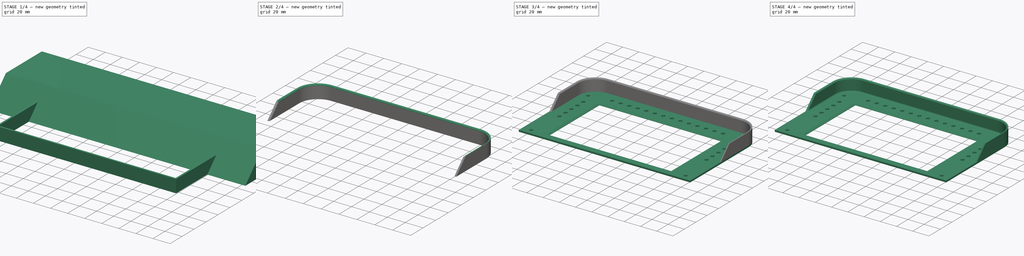
[diagram: build sequence overview — one tinted view per stage of 4, left to right]
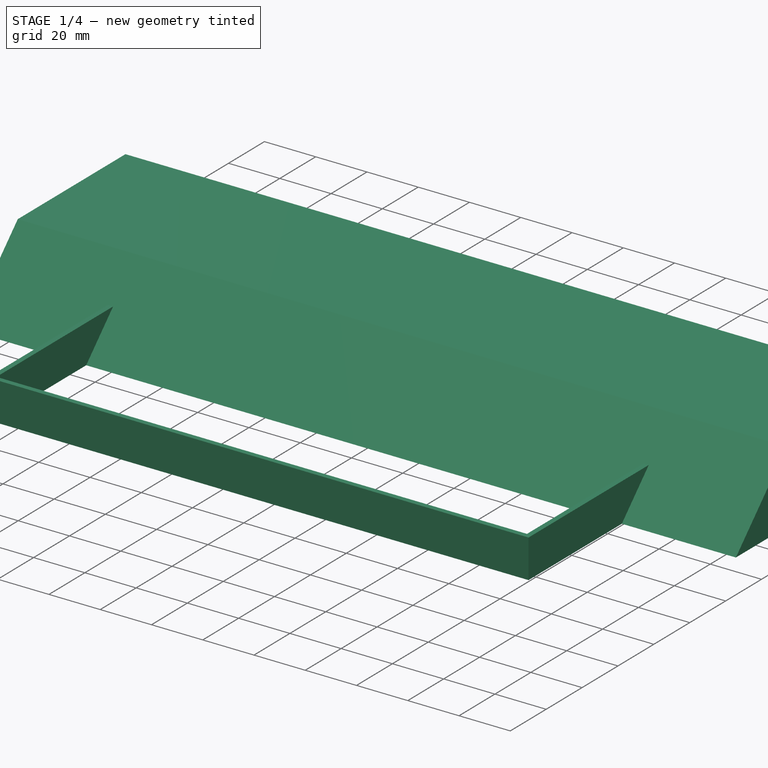
[diagram: stage 1 of 4 — iso view after this stage's code; geometry added in this stage tinted green]
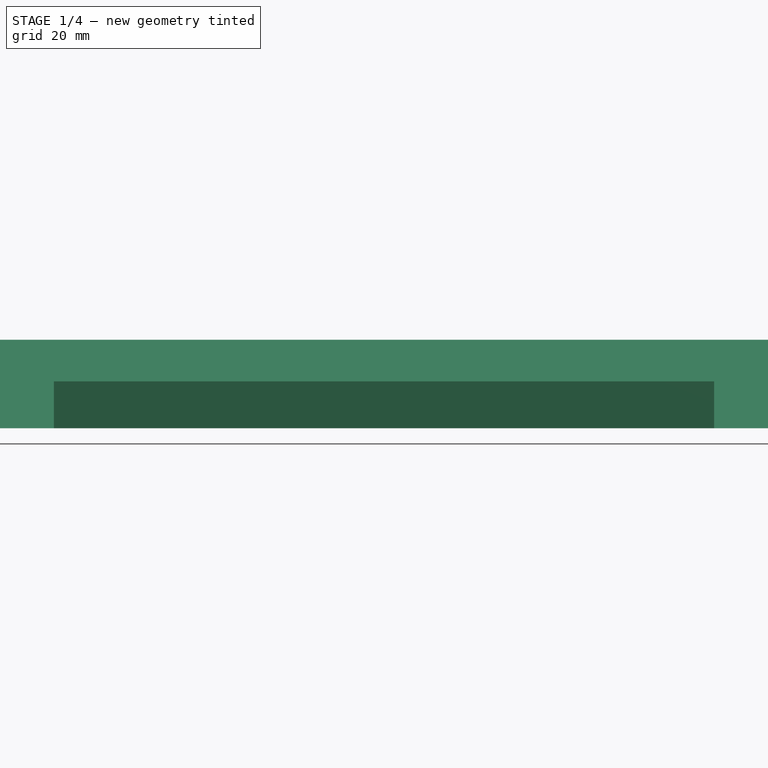
[diagram: stage 1 of 4 — front view after this stage's code; geometry added in this stage tinted green]
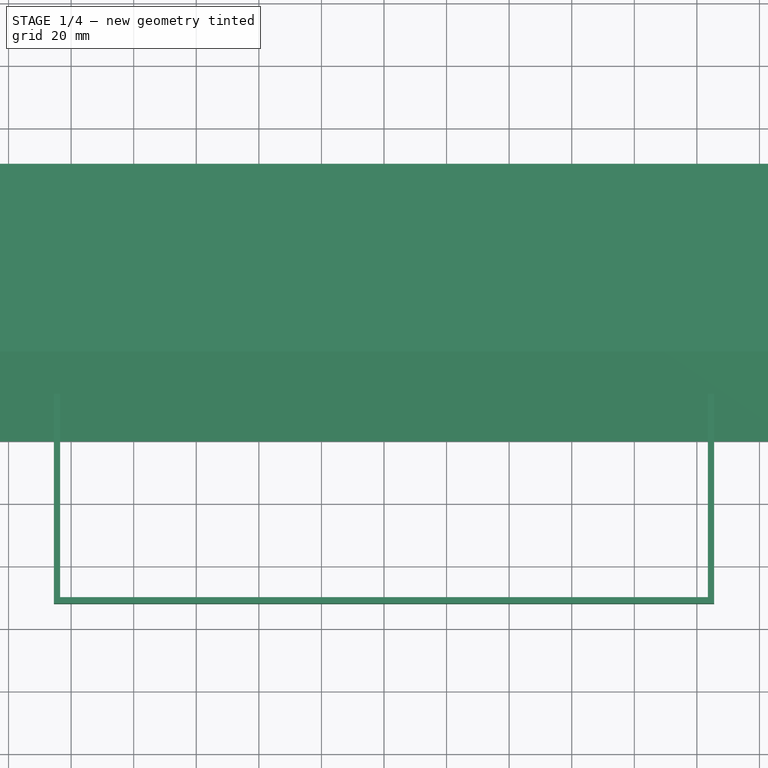
[diagram: stage 1 of 4 — top view after this stage's code; geometry added in this stage tinted green]
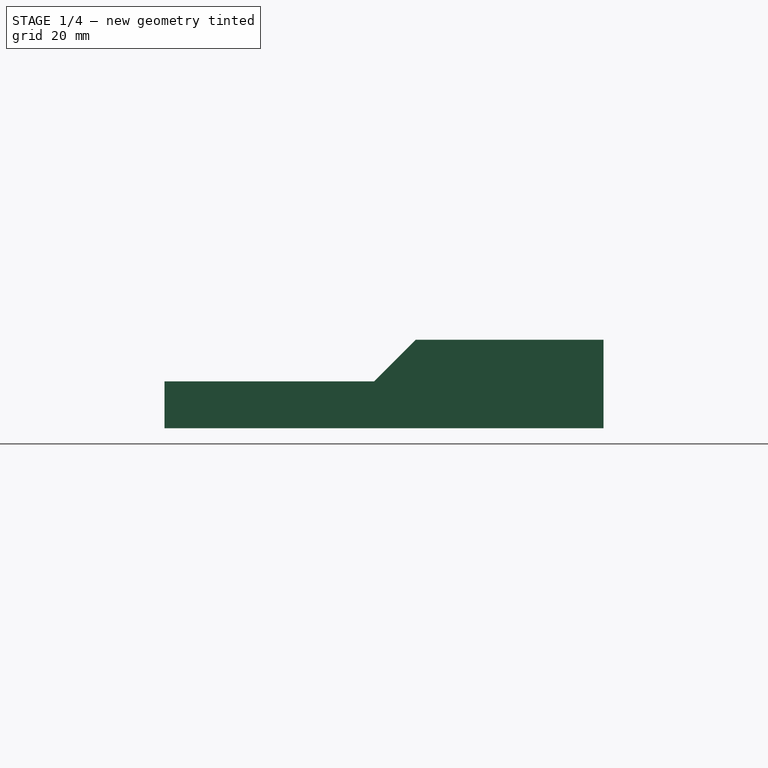
[diagram: stage 1 of 4 — right view after this stage's code; geometry added in this stage tinted green]
FCSTD DOCUMENT  (FreeCAD 0.21R33771 (Git))
Label: 6IN8SHELL-FRONT
License: All rights reserved
LicenseURL: http://en.wikipedia.org/wiki/All_rights_reserved
objects: Sketcher::SketchObject×4, PartDesign::Fillet×4, PartDesign::Pad×3, PartDesign::Body×3, PartDesign::Boolean×2, PartDesign::Chamfer×1
note: 25 computed .brp shape members not serialized (recipe doc carries the construction recipe); baked Part::Feature solids carry a one-line shape summary decoded from their .brp

FEATURE [PartDesign::Body] Body  label="FRONT"
  Group = -> [Sketch002,Pad,Chamfer]
  Origin = -> Origin
  Tip = -> Chamfer
FEATURE [Sketcher::SketchObject] Sketch003
  FullyConstrained = true
  MapMode = 5
  Support = -> [XY_Plane001]
  sketch-geometry (12):
    g0: LineSegment StartX=-105.5 StartY=-52 StartZ=0 EndX=105.5 EndY=-52 EndZ=0
    g1: LineSegment StartX=105.5 StartY=-52 StartZ=0 EndX=105.5 EndY=50 EndZ=0
    g2: LineSegment StartX=-105.5 StartY=-52 StartZ=0 EndX=-105.5 EndY=50 EndZ=0
    g3: LineSegment StartX=-82.5 StartY=73 StartZ=0 EndX=82.5 EndY=73 EndZ=0
    g4: ArcOfCircle CenterX=-82.5 CenterY=50 CenterZ=0 NormalX=0 NormalY=0 NormalZ=1 AngleXU=0 Radius=23 StartAngle=1.5708 EndAngle=3.14159
    g5: ArcOfCircle CenterX=82.5 CenterY=50 CenterZ=0 NormalX=0 NormalY=0 NormalZ=1 AngleXU=0 Radius=23 StartAngle=0 EndAngle=1.5708
    g6: LineSegment StartX=-103.5 StartY=-50 StartZ=0 EndX=103.5 EndY=-50 EndZ=0
    g7: LineSegment StartX=103.5 StartY=-50 StartZ=0 EndX=103.5 EndY=50 EndZ=0
    g8: LineSegment StartX=-103.5 StartY=-50 StartZ=0 EndX=-103.5 EndY=50 EndZ=0
    g9: LineSegment StartX=-82.5 StartY=71 StartZ=0 EndX=82.5 EndY=71 EndZ=0
    g10: ArcOfCircle CenterX=-82.5 CenterY=50 CenterZ=0 NormalX=0 NormalY=0 NormalZ=1 AngleXU=0 Radius=21 StartAngle=1.5708 EndAngle=3.14159
    g11: ArcOfCircle CenterX=82.5 CenterY=50 CenterZ=0 NormalX=0 NormalY=0 NormalZ=1 AngleXU=0 Radius=21 StartAngle=2e-16 EndAngle=1.5708
  constraints (28):
    c: Coincident(g1,g0)
    c: Vertical(g1)
    c: Coincident(g0,g2)
    c: Symmetric(g0,g0,g-2)
    c: DistanceY(g0,g-1) = 52
    c: DistanceX(g0,g-1) = 105.5
    c: Symmetric(g3,g3,g-2)
    c: DistanceY(g-1,g3) = 73
    c: DistanceX(g4,g-1) = 82.5
    c: Equal(g2,g1)
    c: Tangent(g4,g3) = 1.5708
    c: Tangent(g2,g4) = 1.5708
    c: Tangent(g5,g3) = 1.5708
    c: Tangent(g5,g1) = -1.5708
    c: Coincident(g7,g6)
    c: Vertical(g7)
    c: Coincident(g6,g8)
    c: Equal(g8,g7)
    c: Tangent(g10,g9) = 1.5708
    c: Tangent(g8,g10) = 1.5708
    c: Tangent(g11,g9) = 1.5708
    c: Tangent(g11,g7) = -1.5708
    c: Coincident(g10,g4)
    c: Coincident(g5,g11)
    c: Vertical(g8)
    c: DistanceX(g9,g3) = 0
    c: DistanceY(g9,g3) = 2
    c: DistanceY(g0,g6) = 2
FEATURE [PartDesign::Pad] Pad001
  Direction = (0,0,1)
  Length = 15
  Length2 = 10
  Profile = -> Sketch003
  ReferenceAxis = -> Sketch003 [N_Axis]
  Type = 0
FEATURE [Sketcher::SketchObject] Sketch
  FullyConstrained = true
  MapMode = 5
  Placement = pos=(0,0,0) rot=(0.57735,0.57735,0.57735;2.0944rad)
  Support = -> [YZ_Plane001]
  sketch-geometry (4):
    g0: LineSegment StartX=0 StartY=0 StartZ=0 EndX=20 EndY=34.641 EndZ=0
    g1: LineSegment StartX=20 StartY=34.641 StartZ=0 EndX=80 EndY=34.641 EndZ=0
    g2: LineSegment StartX=80 StartY=34.641 StartZ=0 EndX=80 EndY=0 EndZ=0
    g3: LineSegment StartX=0 StartY=0 StartZ=0 EndX=80 EndY=0 EndZ=0
  constraints (11):
    c: Coincident(g0,g-1)
    c: Angle(g-1,g0) = 1.0472
    c: Distance(g0,g0) = 40
    c: Coincident(g1,g0)
    c: Horizontal(g1)
    c: Coincident(g2,g1)
    c: PointOnObject(g2,g-1)
    c: Vertical(g2)
    c: DistanceX(g1,g1) = 60
    c: Coincident(g3,g0)
    c: Coincident(g3,g2)
FEATURE [PartDesign::Body] Body001  label="HAT"
  Group = -> [Sketch003,Pad001,Fillet,Sketch]
  Origin = -> Origin001
  Placement = pos=(0,0,2) rot=(0,0,1;0rad)
  Tip = -> Fillet
FEATURE [Sketcher::SketchObject] Sketch004
  FullyConstrained = true
  MapMode = 5
  Placement = pos=(0,0,0) rot=(0.57735,0.57735,0.57735;2.0944rad)
  Support = -> [YZ_Plane002]
  sketch-geometry (4):
    g0: LineSegment StartX=0 StartY=0 StartZ=0 EndX=28.2843 EndY=28.2843 EndZ=0
    g1: LineSegment StartX=28.2843 StartY=28.2843 StartZ=0 EndX=88.2843 EndY=28.2843 EndZ=0
    g2: LineSegment StartX=88.2843 StartY=28.2843 StartZ=0 EndX=88.2843 EndY=0 EndZ=0
    g3: LineSegment StartX=0 StartY=0 StartZ=0 EndX=88.2843 EndY=0 EndZ=0
  constraints (11):
    c: Coincident(g0,g-1)
    c: Angle(g-1,g0) = 0.785398
    c: Distance(g0,g0) = 40
    c: Coincident(g1,g0)
    c: Horizontal(g1)
    c: Coincident(g2,g1)
    c: PointOnObject(g2,g-1)
    c: Vertical(g2)
    c: DistanceX(g1,g1) = 60
    c: Coincident(g3,g0)
    c: Coincident(g3,g2)
FEATURE [PartDesign::Pad] Pad002
  Direction = (1,-2e-16,3e-16)
  Length = 150
  Length2 = 150
  Placement = pos=(0,0,0) rot=(0.57735,0.57735,0.57735;2.0944rad)
  Profile = -> Sketch004
  ReferenceAxis = -> Sketch004 [N_Axis]
  Type = 4
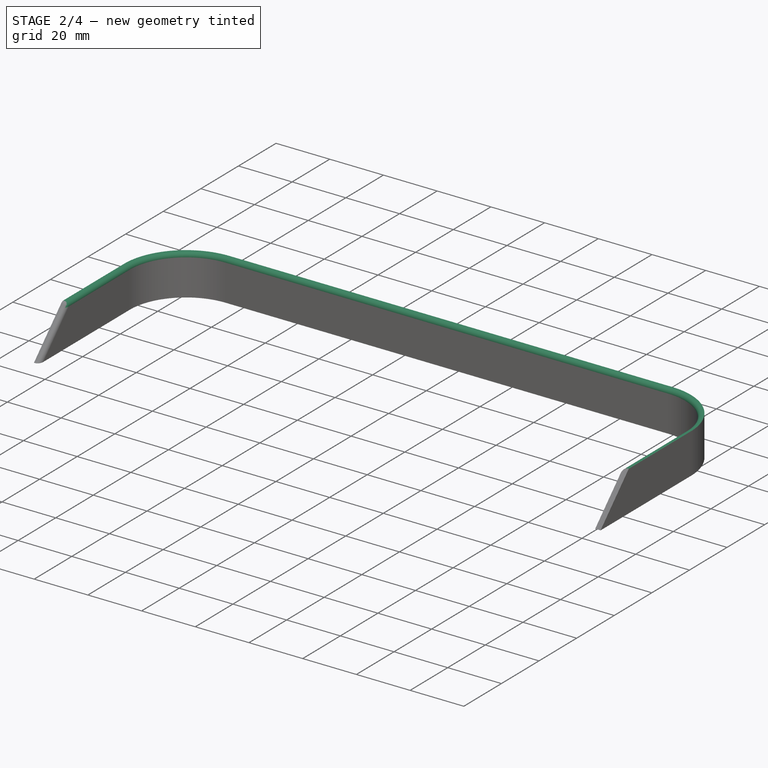
[diagram: stage 2 of 4 — iso view after this stage's code; geometry added in this stage tinted green]
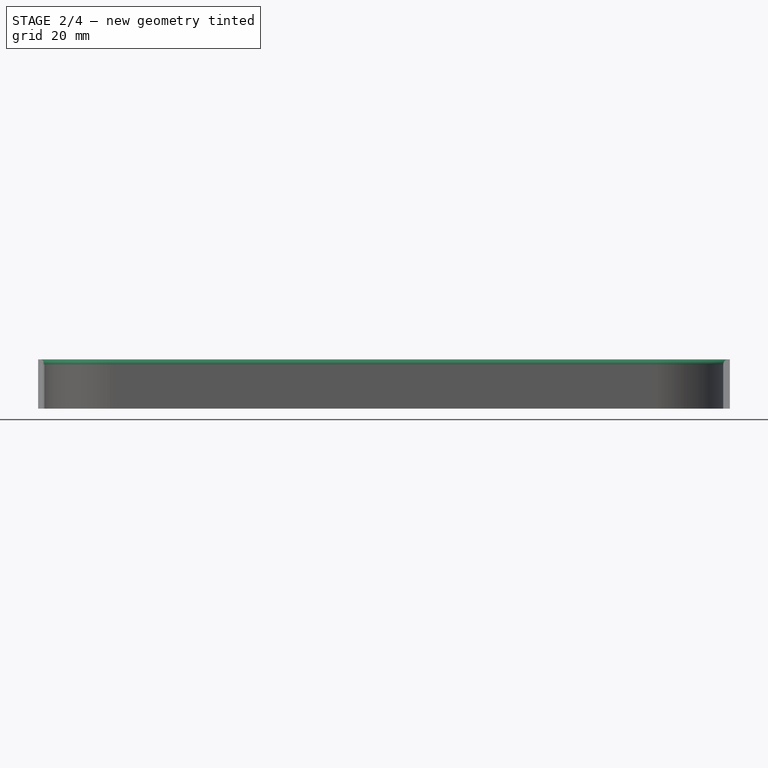
[diagram: stage 2 of 4 — front view after this stage's code; geometry added in this stage tinted green]
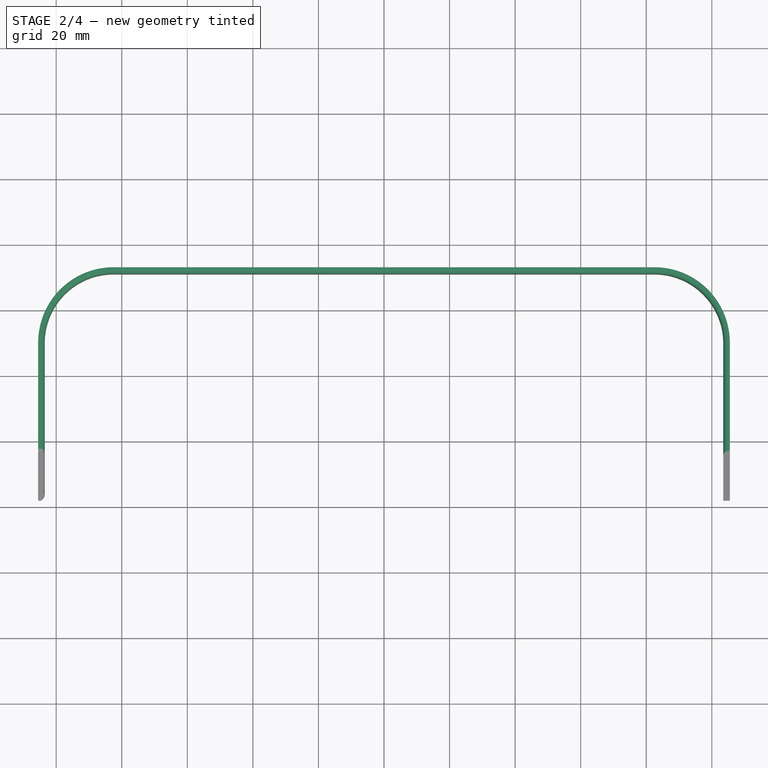
[diagram: stage 2 of 4 — top view after this stage's code; geometry added in this stage tinted green]
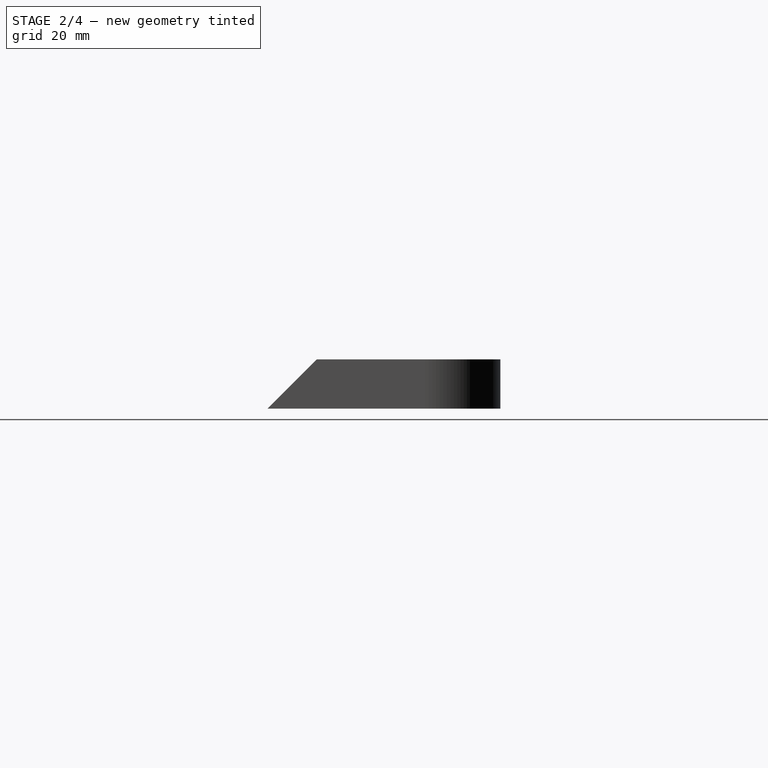
[diagram: stage 2 of 4 — right view after this stage's code; geometry added in this stage tinted green]
FEATURE [PartDesign::Fillet] Fillet
  Base = -> Pad001 [Edge36]
  BaseFeature = -> Pad001
  Radius = 1.5
  SupportTransform = false
  UseAllEdges = false
FEATURE [PartDesign::Boolean] Boolean
  BaseFeature = -> Pad002
  Group = -> [Body001]
  Type = 2
FEATURE [PartDesign::Fillet] Fillet001
  Base = -> Boolean [Edge40]
  BaseFeature = -> Boolean
  Radius = 1.5
  SupportTransform = false
  UseAllEdges = false
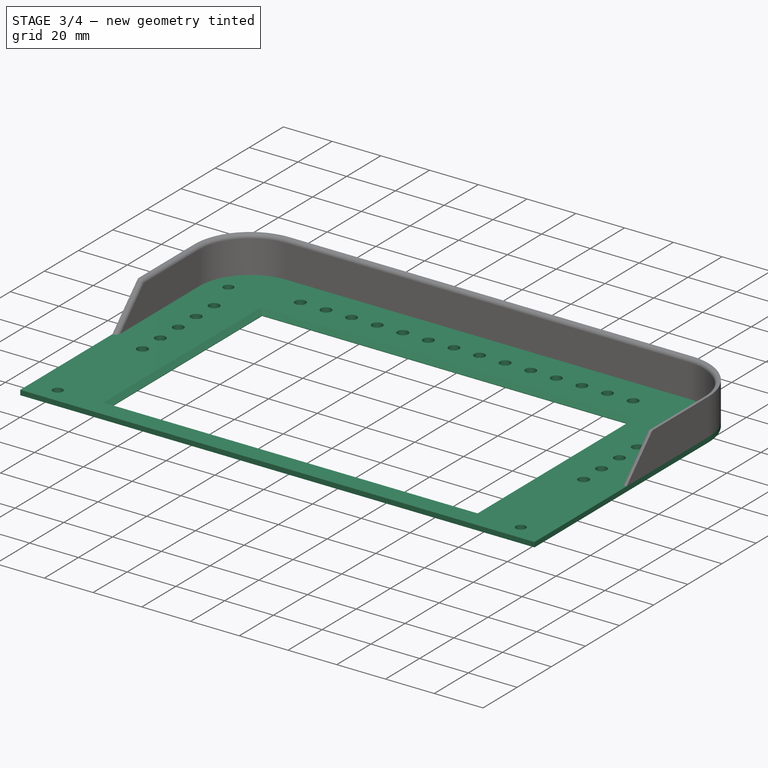
[diagram: stage 3 of 4 — iso view after this stage's code; geometry added in this stage tinted green]
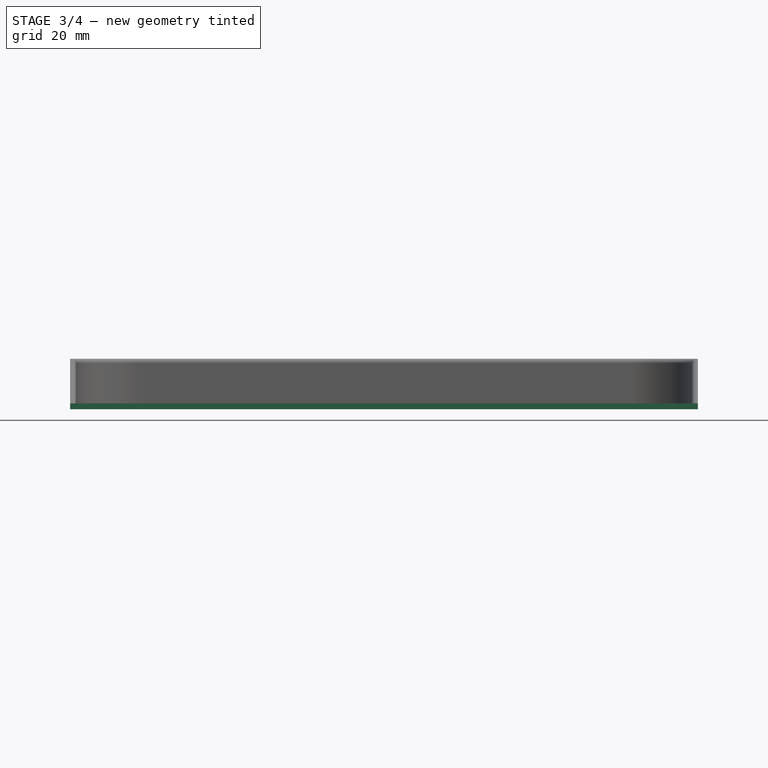
[diagram: stage 3 of 4 — front view after this stage's code; geometry added in this stage tinted green]
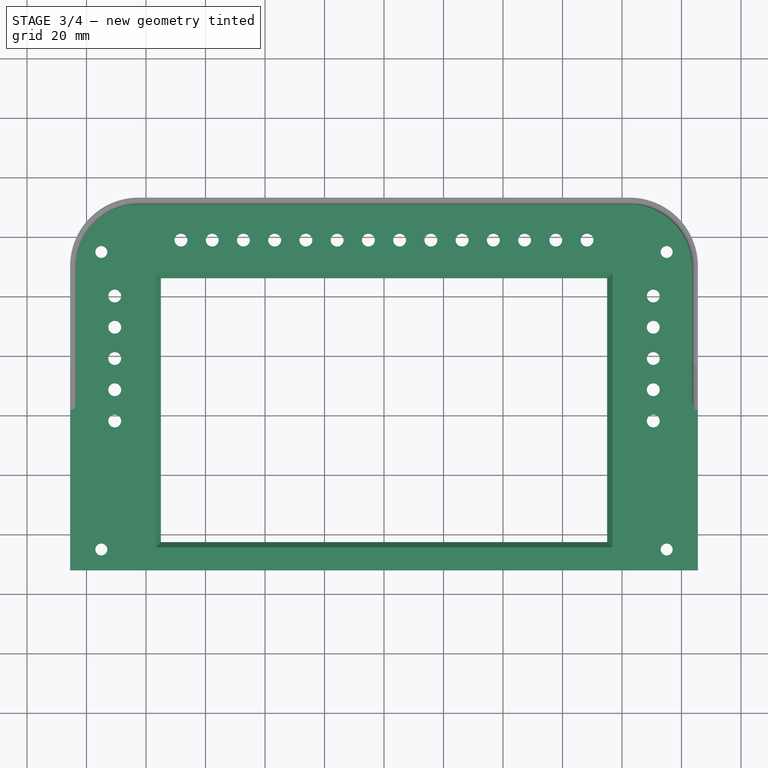
[diagram: stage 3 of 4 — top view after this stage's code; geometry added in this stage tinted green]
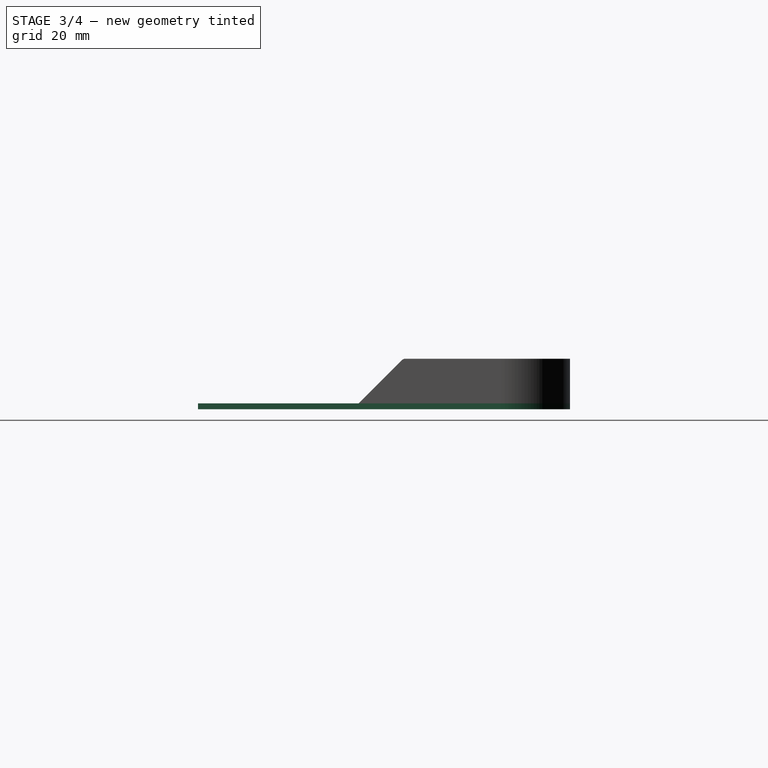
[diagram: stage 3 of 4 — right view after this stage's code; geometry added in this stage tinted green]
FEATURE [Sketcher::SketchObject] Sketch002
  FullyConstrained = true
  MapMode = 5
  Support = -> [XY_Plane]
  sketch-geometry (59):
    g0: LineSegment StartX=-105.5 StartY=-52 StartZ=0 EndX=105.5 EndY=-52 EndZ=0
    g1: LineSegment StartX=105.5 StartY=-52 StartZ=0 EndX=105.5 EndY=50 EndZ=0
    g2: LineSegment StartX=-105.5 StartY=-52 StartZ=0 EndX=-105.5 EndY=50 EndZ=0
    g3: LineSegment StartX=-82.5 StartY=73 StartZ=0 EndX=82.5 EndY=73 EndZ=0
    g4: ArcOfCircle CenterX=-82.5 CenterY=50 CenterZ=0 NormalX=0 NormalY=0 NormalZ=1 AngleXU=0 Radius=23 StartAngle=1.5708 EndAngle=3.14159
    g5: ArcOfCircle CenterX=82.5 CenterY=50 CenterZ=0 NormalX=0 NormalY=0 NormalZ=1 AngleXU=0 Radius=23 StartAngle=1.807e-12 EndAngle=1.5708
    g6: LineSegment StartX=-75 StartY=46.2 StartZ=0 EndX=75 EndY=46.2 EndZ=0
    g7: LineSegment StartX=75 StartY=46.2 StartZ=0 EndX=75 EndY=-42.5 EndZ=0
    g8: LineSegment StartX=75 StartY=-42.5 StartZ=0 EndX=-75 EndY=-42.5 EndZ=0
    g9: LineSegment StartX=-75 StartY=-42.5 StartZ=0 EndX=-75 EndY=46.2 EndZ=0
    g10: Circle CenterX=-90.5 CenterY=40.2 CenterZ=0 NormalX=0 NormalY=0 NormalZ=1 AngleXU=0 Radius=2.16
    g11: Circle CenterX=90.5 CenterY=40.2 CenterZ=0 NormalX=0 NormalY=0 NormalZ=1 AngleXU=0 Radius=2.16
    g12: Circle CenterX=-68.25 CenterY=59 CenterZ=0 NormalX=0 NormalY=0 NormalZ=1 AngleXU=0 Radius=2.16
    g13: Circle CenterX=-57.75 CenterY=59 CenterZ=0 NormalX=0 NormalY=0 NormalZ=1 AngleXU=0 Radius=2.16
    g14: LineSegment StartX=-68.25 StartY=59 StartZ=0 EndX=-57.75 EndY=59 EndZ=0
    g15: Circle CenterX=-47.25 CenterY=59 CenterZ=0 NormalX=0 NormalY=0 NormalZ=1 AngleXU=0 Radius=2.16
    g16: LineSegment StartX=-57.75 StartY=59 StartZ=0 EndX=-47.25 EndY=59 EndZ=0
    g17: Circle CenterX=-36.75 CenterY=59 CenterZ=0 NormalX=0 NormalY=0 NormalZ=1 AngleXU=0 Radius=2.16
    g18: LineSegment StartX=-47.25 StartY=59 StartZ=0 EndX=-36.75 EndY=59 EndZ=0
    g19: Circle CenterX=-26.25 CenterY=59 CenterZ=0 NormalX=0 NormalY=0 NormalZ=1 AngleXU=0 Radius=2.16
    g20: LineSegment StartX=-36.75 StartY=59 StartZ=0 EndX=-26.25 EndY=59 EndZ=0
    g21: Circle CenterX=-15.75 CenterY=59 CenterZ=0 NormalX=0 NormalY=0 NormalZ=1 AngleXU=0 Radius=2.16
    g22: LineSegment StartX=-26.25 StartY=59 StartZ=0 EndX=-15.75 EndY=59 EndZ=0
    g23: Circle CenterX=-5.25 CenterY=59 CenterZ=0 NormalX=0 NormalY=0 NormalZ=1 AngleXU=0 Radius=2.16
    g24: LineSegment StartX=-15.75 StartY=59 StartZ=0 EndX=-5.25 EndY=59 EndZ=0
    g25: Circle CenterX=5.25 CenterY=59 CenterZ=0 NormalX=0 NormalY=0 NormalZ=1 AngleXU=0 Radius=2.16
    g26: LineSegment StartX=-5.25 StartY=59 StartZ=0 EndX=5.25 EndY=59 EndZ=0
    g27: Circle CenterX=15.75 CenterY=59 CenterZ=0 NormalX=0 NormalY=0 NormalZ=1 AngleXU=0 Radius=2.16
    g28: LineSegment StartX=5.25 StartY=59 StartZ=0 EndX=15.75 EndY=59 EndZ=0
    g29: Circle CenterX=26.25 CenterY=59 CenterZ=0 NormalX=0 NormalY=0 NormalZ=1 AngleXU=0 Radius=2.16
    g30: LineSegment StartX=15.75 StartY=59 StartZ=0 EndX=26.25 EndY=59 EndZ=0
    g31: Circle CenterX=36.75 CenterY=59 CenterZ=0 NormalX=0 NormalY=0 NormalZ=1 AngleXU=0 Radius=2.16
    g32: LineSegment StartX=26.25 StartY=59 StartZ=0 EndX=36.75 EndY=59 EndZ=0
    g33: Circle CenterX=47.25 CenterY=59 CenterZ=0 NormalX=0 NormalY=0 NormalZ=1 AngleXU=0 Radius=2.16
    g34: LineSegment StartX=36.75 StartY=59 StartZ=0 EndX=47.25 EndY=59 EndZ=0
    g35: Circle CenterX=57.75 CenterY=59 CenterZ=0 NormalX=0 NormalY=0 NormalZ=1 AngleXU=0 Radius=2.16
    g36: LineSegment StartX=47.25 StartY=59 StartZ=0 EndX=57.75 EndY=59 EndZ=0
    g37: Circle CenterX=68.25 CenterY=59 CenterZ=0 NormalX=0 NormalY=0 NormalZ=1 AngleXU=0 Radius=2.16
    g38: LineSegment StartX=57.75 StartY=59 StartZ=0 EndX=68.25 EndY=59 EndZ=0
    g39: Circle CenterX=-90.5 CenterY=29.7 CenterZ=0 NormalX=0 NormalY=0 NormalZ=1 AngleXU=0 Radius=2.16
    g40: LineSegment StartX=-90.5 StartY=40.2 StartZ=0 EndX=-90.5 EndY=29.7 EndZ=0
    g41: Circle CenterX=-90.5 CenterY=19.2 CenterZ=0 NormalX=0 NormalY=0 NormalZ=1 AngleXU=0 Radius=2.16
    g42: LineSegment StartX=-90.5 StartY=29.7 StartZ=0 EndX=-90.5 EndY=19.2 EndZ=0
    g43: Circle CenterX=-90.5 CenterY=8.7 CenterZ=0 NormalX=0 NormalY=0 NormalZ=1 AngleXU=0 Radius=2.16
    g44: LineSegment StartX=-90.5 StartY=19.2 StartZ=0 EndX=-90.5 EndY=8.7 EndZ=0
    g45: Circle CenterX=-90.5 CenterY=-1.8 CenterZ=0 NormalX=0 NormalY=0 NormalZ=1 AngleXU=0 Radius=2.16
    g46: LineSegment StartX=-90.5 StartY=8.7 StartZ=0 EndX=-90.5 EndY=-1.8 EndZ=0
    g47: Circle CenterX=90.5 CenterY=29.7 CenterZ=0 NormalX=0 NormalY=0 NormalZ=1 AngleXU=0 Radius=2.16
    g48: LineSegment StartX=90.5 StartY=40.2 StartZ=0 EndX=90.5 EndY=29.7 EndZ=0
    g49: Circle CenterX=90.5 CenterY=19.2 CenterZ=0 NormalX=0 NormalY=0 NormalZ=1 AngleXU=0 Radius=2.16
    g50: LineSegment StartX=90.5 StartY=29.7 StartZ=0 EndX=90.5 EndY=19.2 EndZ=0
    g51: Circle CenterX=90.5 CenterY=8.7 CenterZ=0 NormalX=0 NormalY=0 NormalZ=1 AngleXU=0 Radius=2.16
    g52: LineSegment StartX=90.5 StartY=19.2 StartZ=0 EndX=90.5 EndY=8.7 EndZ=0
    g53: Circle CenterX=90.5 CenterY=-1.8 CenterZ=0 NormalX=0 NormalY=0 NormalZ=1 AngleXU=0 Radius=2.16
    g54: LineSegment StartX=90.5 StartY=8.7 StartZ=0 EndX=90.5 EndY=-1.8 EndZ=0
    g55: Circle CenterX=-95 CenterY=-45 CenterZ=0 NormalX=0 NormalY=0 NormalZ=1 AngleXU=0 Radius=2
    g56: Circle CenterX=95 CenterY=-45 CenterZ=0 NormalX=0 NormalY=0 NormalZ=1 AngleXU=0 Radius=2
    g57: Circle CenterX=95 CenterY=55 CenterZ=0 NormalX=0 NormalY=0 NormalZ=1 AngleXU=0 Radius=2
    g58: Circle CenterX=-95 CenterY=55 CenterZ=0 NormalX=0 NormalY=0 NormalZ=1 AngleXU=0 Radius=2
  constraints (148):
    c: Coincident(g1,g0)
    c: Vertical(g1)
    c: Coincident(g0,g2)
    c: Symmetric(g0,g0,g-2)
    c: DistanceY(g0,g-1) = 52
    c: DistanceX(g0,g-1) = 105.5
    c: Symmetric(g3,g3,g-2)
    c: DistanceY(g-1,g3) = 73
    c: DistanceX(g4,g-1) = 82.5
    c: Equal(g2,g1)
    c: Tangent(g4,g3) = 1.5708
    c: Tangent(g2,g4) = 1.5708
    c: Tangent(g5,g3) = 1.5708
    c: Tangent(g5,g1) = -1.5708
    c: Coincident(g6,g7)
    c: Coincident(g7,g8)
    c: Coincident(g8,g9)
    c: Coincident(g9,g6)
    c: Horizontal(g8)
    c: Vertical(g7)
    c: Vertical(g9)
    c: Symmetric(g6,g6,g-2)
    c: DistanceY(g0,g7) = 9.5
    c: DistanceY(g8,g6) = 88.7
    c: DistanceX(g2,g10) = 15
    c: DistanceY(g10,g6) = 6
    c: Symmetric(g11,g10,g-2)
    c: Radius(g12) = 2.16
    c: Equal(g12,g11)
    c: Equal(g12,g10)
    c: Equal(g12,g13) = 2.2
    c: Coincident(g12,g14)
    c: Coincident(g13,g14)
    c: Distance(g14) = 10.5
    c: Angle(g14) = 0
    c: Equal(g12,g15) = 2.2
    c: Coincident(g13,g16)
    c: Coincident(g15,g16)
    c: Equal(g14,g16)
    c: Parallel(g16,g14)
    c: Equal(g12,g17) = 2.2
    c: Coincident(g15,g18)
    c: Coincident(g17,g18)
    c: Equal(g14,g18)
    c: Parallel(g18,g14)
    c: Equal(g12,g19) = 2.2
    c: Coincident(g17,g20)
    c: Coincident(g19,g20)
    c: Equal(g14,g20)
    c: Parallel(g20,g14)
    c: Equal(g12,g21) = 2.2
    c: Coincident(g19,g22)
    c: Coincident(g21,g22)
    c: Equal(g14,g22)
    c: Parallel(g22,g14)
    c: Equal(g12,g23) = 2.2
    c: Coincident(g21,g24)
    c: Coincident(g23,g24)
    c: Equal(g14,g24)
    c: Parallel(g24,g14)
    c: Equal(g12,g25) = 2.2
    c: Coincident(g23,g26)
    c: Coincident(g25,g26)
    c: Equal(g14,g26)
    c: Parallel(g26,g14)
    c: Equal(g12,g27) = 2.2
    c: Coincident(g25,g28)
    c: Coincident(g27,g28)
    c: Equal(g14,g28)
    c: Parallel(g28,g14)
    c: Equal(g12,g29) = 2.2
    c: Coincident(g27,g30)
    c: Coincident(g29,g30)
    c: Equal(g14,g30)
    c: Parallel(g30,g14)
    c: Equal(g12,g31) = 2.2
    c: Coincident(g29,g32)
    c: Coincident(g31,g32)
    c: Equal(g14,g32)
    c: Parallel(g32,g14)
    c: Equal(g12,g33) = 2.2
    c: Coincident(g31,g34)
    c: Coincident(g33,g34)
    c: Equal(g14,g34)
    c: Parallel(g34,g14)
    c: Equal(g12,g35) = 2.2
    c: Coincident(g33,g36)
    c: Coincident(g35,g36)
    c: Equal(g14,g36)
    c: Parallel(g36,g14)
    c: Equal(g12,g37) = 2.2
    c: Coincident(g35,g38)
    c: Coincident(g37,g38)
    c: Equal(g14,g38)
    c: Parallel(g38,g14)
    c: DistanceY(g12,g3) = 14
    c: DistanceX(g23,g-1) = 5.25
    c: Coincident(g10,g40)
    c: Coincident(g39,g40)
    c: Distance(g40) = 10.5
    c: Angle(g40) = -1.5708
    c: Coincident(g39,g42)
    c: Coincident(g41,g42)
    c: Equal(g40,g42)
    c: Parallel(g42,g40)
    c: Coincident(g41,g44)
    c: Coincident(g43,g44)
    c: Equal(g40,g44)
    c: Parallel(g44,g40)
    c: Coincident(g43,g46)
    c: Coincident(g45,g46)
    c: Equal(g40,g46)
    c: Parallel(g46,g40)
    c: Equal(g39,g41)
    c: Equal(g41,g43)
    c: Equal(g43,g45)
    c: Equal(g45,g10)
    c: Coincident(g11,g48)
    c: Coincident(g47,g48)
    c: Distance(g48) = 10.5
    c: Angle(g48) = -1.5708
    c: Coincident(g47,g50)
    c: Coincident(g49,g50)
    c: Equal(g48,g50)
    c: Parallel(g50,g48)
    c: Coincident(g49,g52)
    c: Coincident(g51,g52)
    c: Equal(g48,g52)
    c: Parallel(g52,g48)
    c: Coincident(g51,g54)
    c: Coincident(g53,g54)
    c: Equal(g48,g54)
    c: Parallel(g54,g48)
    c: Equal(g11,g47)
    c: Equal(g47,g49)
    c: Equal(g49,g53)
    c: Equal(g53,g51)
    c: Radius(g55) = 2
    c: DistanceX(g55,g-1) = 95
    c: DistanceY(g55,g-1) = 45
    c: Equal(g55,g58) = 2
    c: Equal(g56,g57) = 2
    c: DistanceX(g55,g58) = 0
    c: DistanceY(g55,g58) = 100
    c: Symmetric(g57,g58,g-2)
    c: Symmetric(g56,g55,g-2)
    c: Equal(g56,g55)
    c: DistanceX(g6,g-1) = 75
FEATURE [PartDesign::Pad] Pad
  Direction = (0,0,1)
  Length = 2
  Length2 = 10
  Profile = -> Sketch002
  ReferenceAxis = -> Sketch002 [N_Axis]
  Type = 0
FEATURE [PartDesign::Chamfer] Chamfer
  Angle = 45
  Base = -> Pad [Edge22,Edge30,Edge25,Edge28]
  BaseFeature = -> Pad
  ChamferType = 0
  FlipDirection = false
  Size = 1.8
  Size2 = 1
  SupportTransform = false
  UseAllEdges = false
FEATURE [PartDesign::Fillet] Fillet002
  Base = -> Fillet001 [Edge35]
  BaseFeature = -> Fillet001
  Radius = 1.5
  SupportTransform = false
  UseAllEdges = false
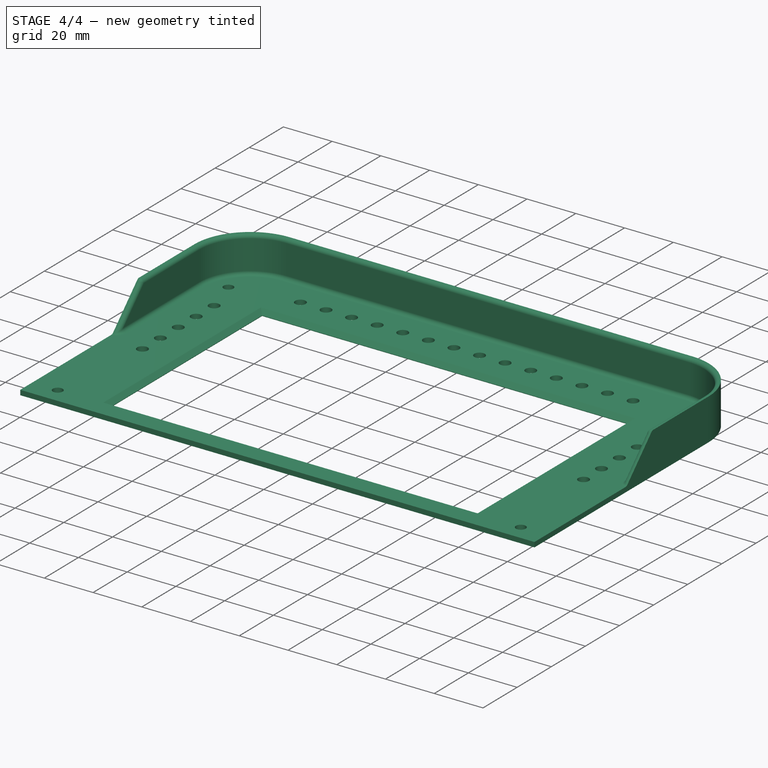
[diagram: stage 4 of 4 — iso view after this stage's code; geometry added in this stage tinted green]
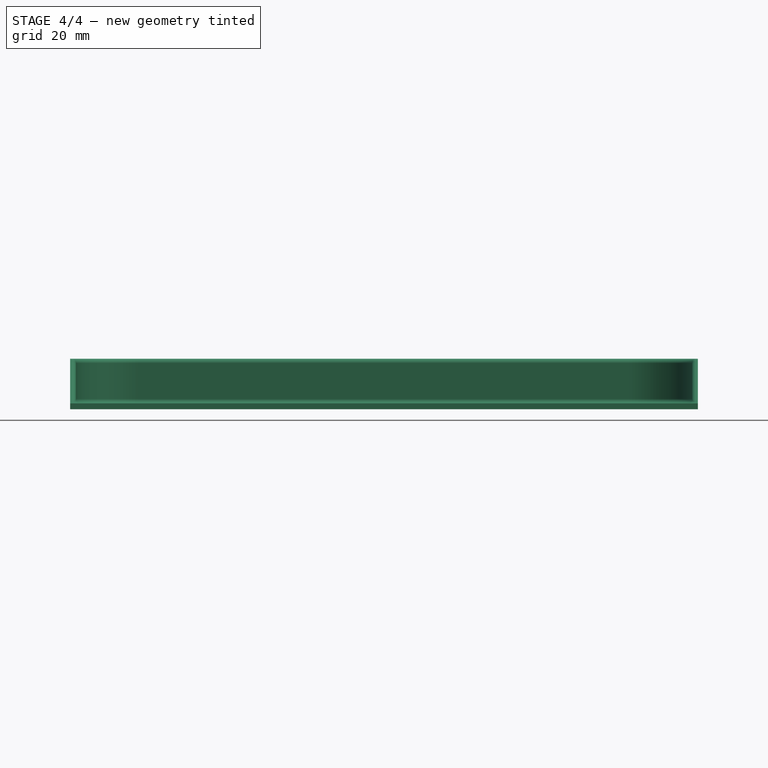
[diagram: stage 4 of 4 — front view after this stage's code; geometry added in this stage tinted green]
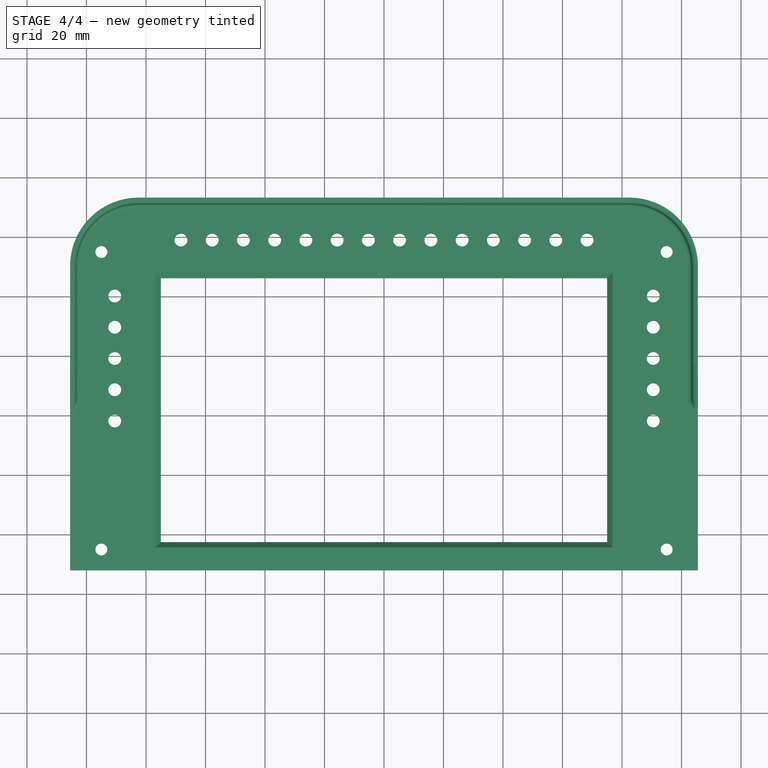
[diagram: stage 4 of 4 — top view after this stage's code; geometry added in this stage tinted green]
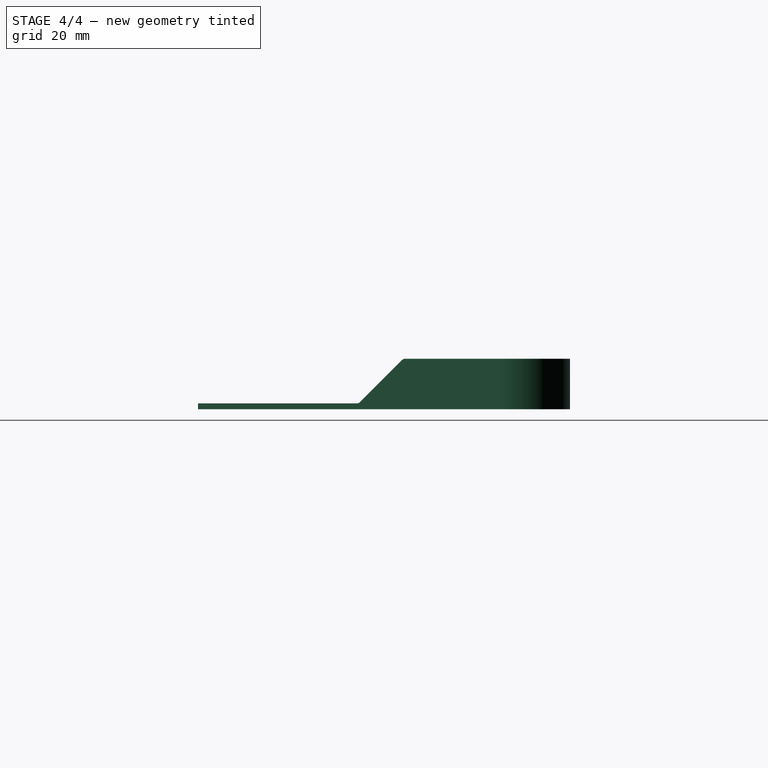
[diagram: stage 4 of 4 — right view after this stage's code; geometry added in this stage tinted green]
FEATURE [PartDesign::Boolean] Boolean001
  BaseFeature = -> Fillet002
  Group = -> [Body]
  Type = 0
FEATURE [PartDesign::Fillet] Fillet003
  Base = -> Boolean001 [Edge8]
  BaseFeature = -> Boolean001
  Radius = 1.5
  SupportTransform = false
  UseAllEdges = false
FEATURE [PartDesign::Body] Body002  label="TOP"
  Group = -> [Sketch004,Pad002,Boolean,Fillet001,Fillet002,Boolean001,Fillet003]
  Origin = -> Origin002
  Tip = -> Fillet003
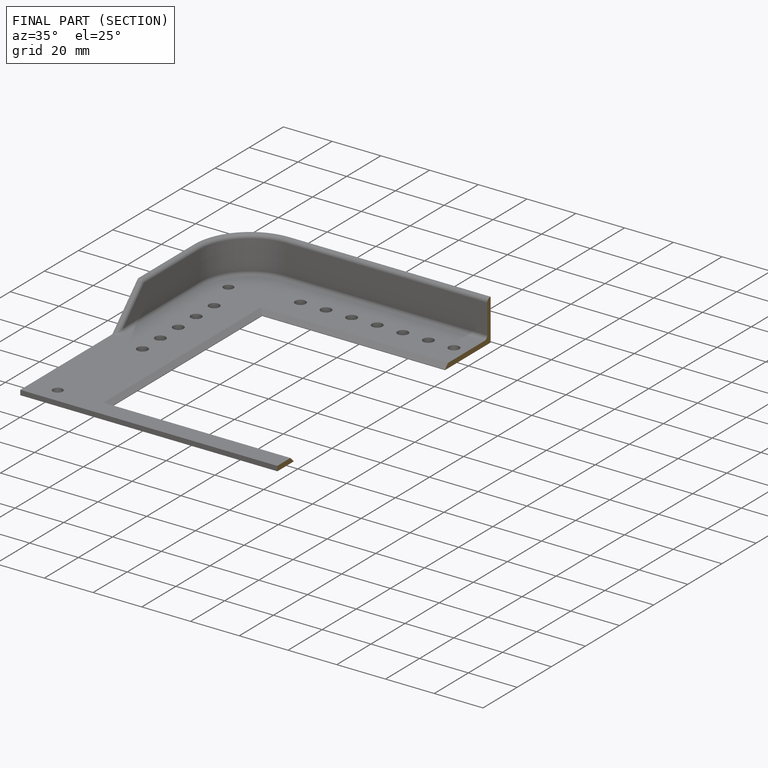
[diagram: finished part — half-section view (interior)]
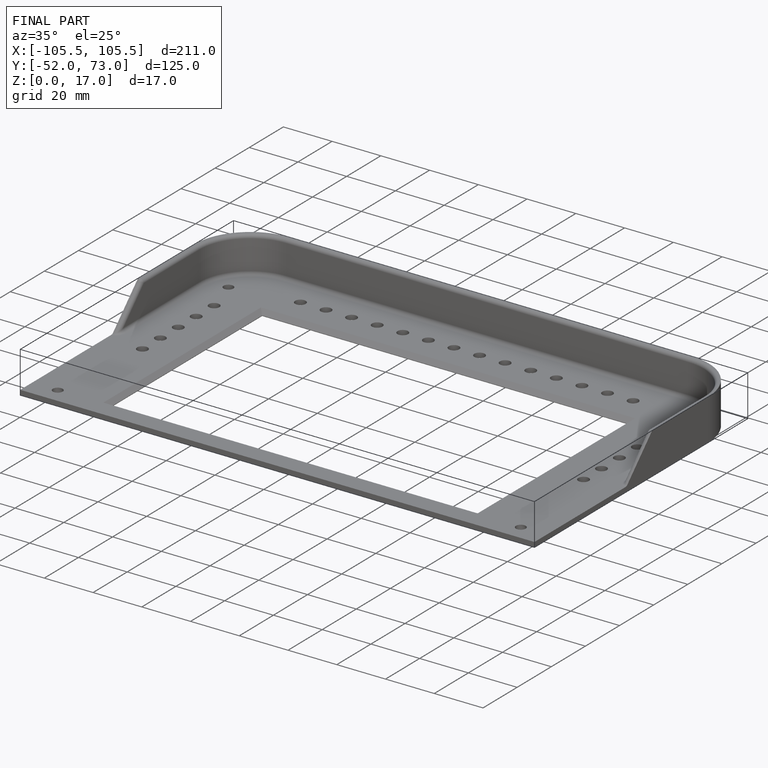
[diagram: finished part — iso view with bounding-box wireframe]
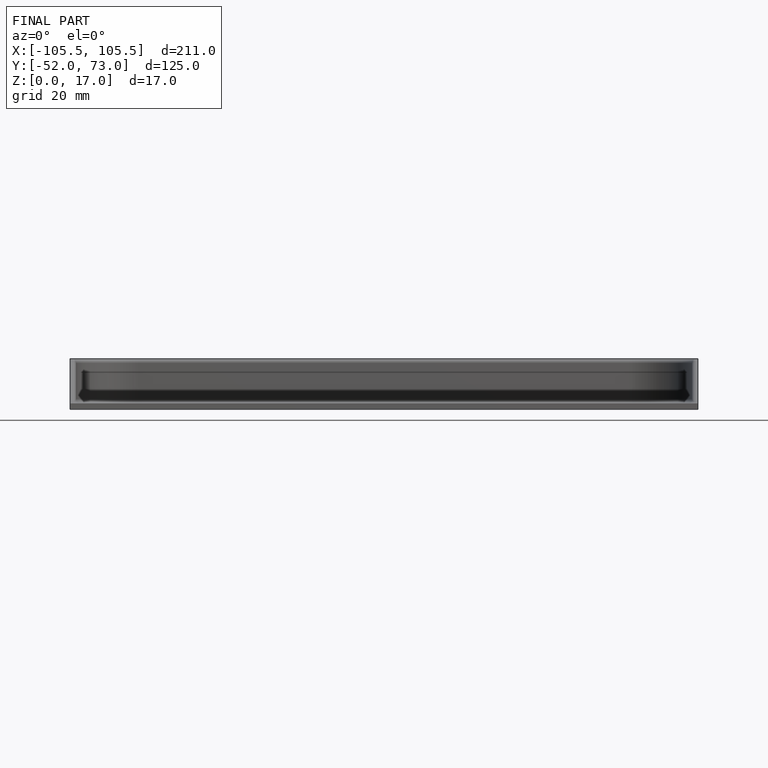
[diagram: finished part — front view with bounding-box wireframe]
